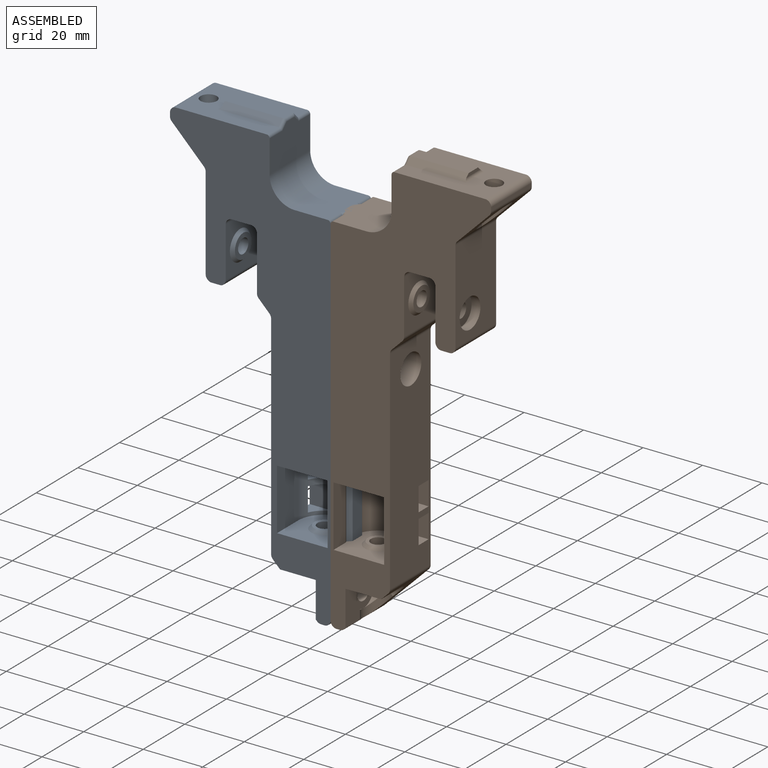
[diagram: assembled view]
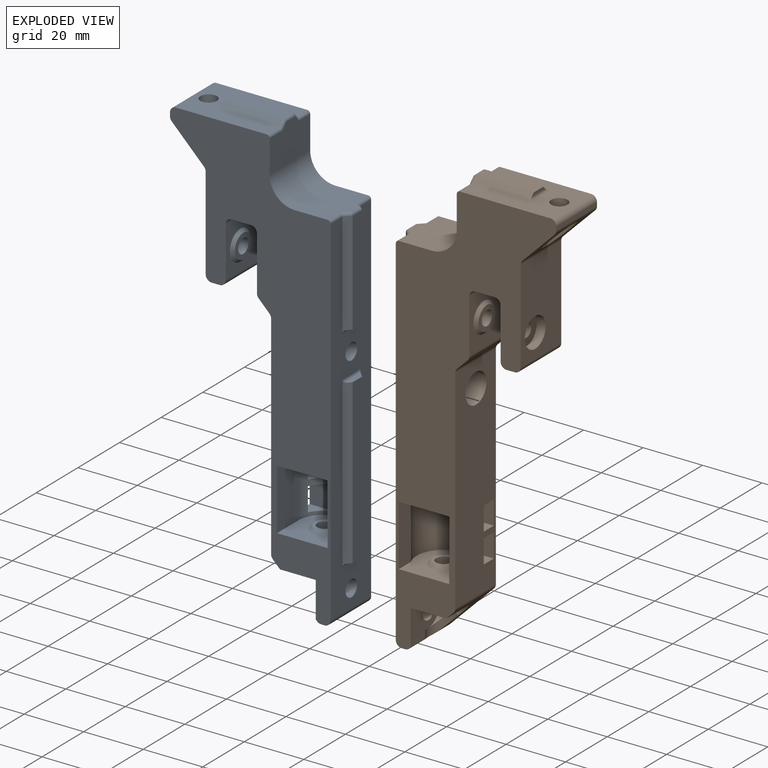
[diagram: exploded view]
GUIDED TOUR — FREECAD ASSEMBLY "back-idler-mounts"

This assembly has 2 components, labeled P0..P1 below (a component is one placed body or linked part; the same part can appear more than once), held together by 0 modeled joints plus 1 derived contact edge. A joint is a constraint between two components; its type names the relative motion it leaves free:
  CONTACT — a derived adjacency edge — the two components touch in the source model (clearance under 2% of the assembly's diagonal); it is measured from the geometry, not a modeled constraint.
Axis/direction vectors are unit vectors and 'through' points are millimeter coordinates, both in the assembly's world frame.

MATES
  1. CONTACT "contact_0_1": P0 <-> P1, contact direction (1.000, 0.000, 0.000) through (0.00, -10.00, -142.00) mm (derived from contact, not a modeled constraint)

ASSEMBLY ORDER
  1. P0 — the base component [order heuristic]
  2. P1 [order heuristic]
Order-tag legend:
  [order heuristic] — this assembly is geometrically interlocked (no collision-free removal order exists), so components are listed in mate-graph order; insertion feasibility is not verified.

Of the 2 components, 2 carry a construction recipe — the FreeCAD feature program (sketches with constraints, then the solid features that consume them) that regenerates the part from scratch, quoted from this document or from the linked companion document it references; the rest are supplied as boundary geometry only. The tour below walks the components in assembly order: each is shown spotlighted twice — in the assembled view, then in the exploded view, where a leader line traces a displaced component back to its assembled socket (components that stay in place when exploded have no leader line; saturated green if recipe-attached, orange if geometry-only; every other component desaturated gray) — followed by its recipe or geometry summary and the mates that hold it.
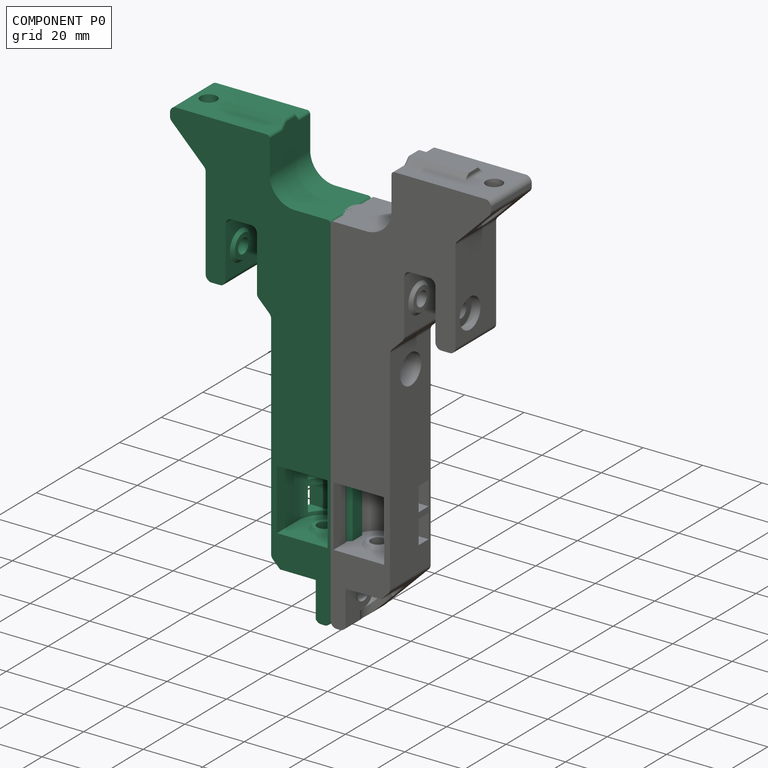
[diagram: component P0 — assembled]
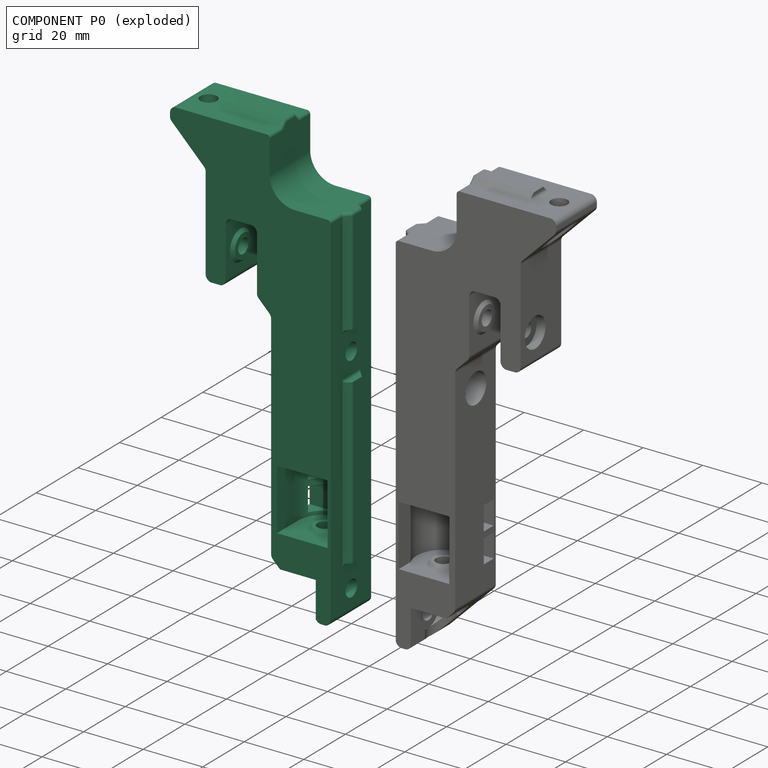
[diagram: component P0 — exploded]
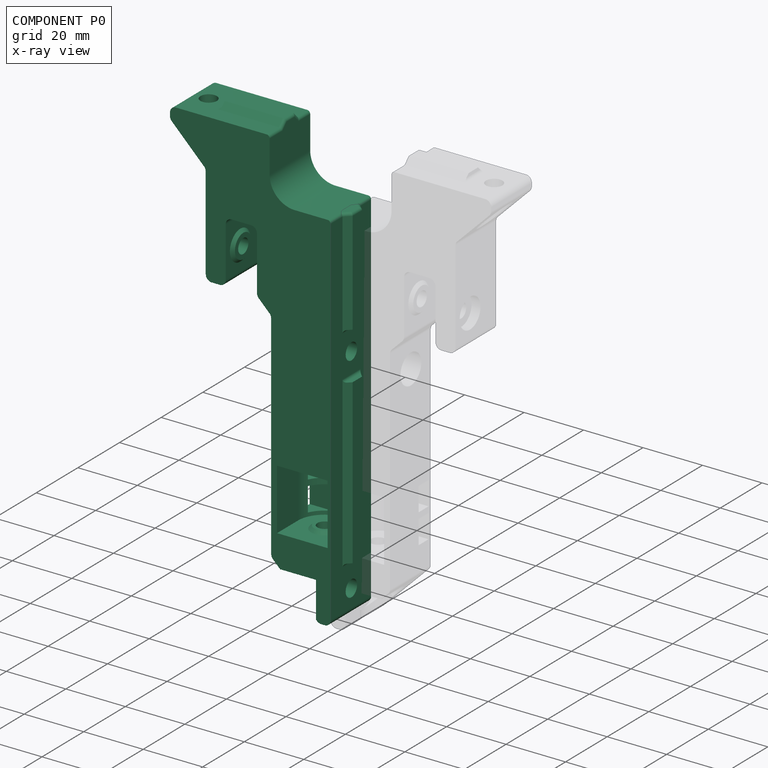
[diagram: component P0 — x-ray view]
COMPONENT P0 — recipe-attached ("main-right", modeled in this document).
Held by: resting contact with P1 (derived edge).
Construction recipe (the document's own serialized feature program — sketch geometry with constraints, then the solid features built on it; lengths are millimeters unless a unit is written):

FEATURE [Sketcher::SketchObject] Sketch307
  ArcFitTolerance = 0
  AttachmentSupport = -> [XZ_Plane295]
  FullyConstrained = true
  MakeInternals = false
  MapMode = 5
  Placement = pos=(0,0,0) rot=(1,0,0;1.5708rad)
  sketch-geometry (47):
    g0: LineSegment [constr] StartX=-20 StartY=0 StartZ=0 EndX=-20 EndY=-12 EndZ=0
    g1: LineSegment [constr] StartX=-12 StartY=-20 StartZ=0 EndX=0 EndY=-20 EndZ=0
    g2: LineSegment StartX=-20.5 StartY=0 StartZ=0 EndX=-20.5 EndY=-12 EndZ=0
    g3: LineSegment StartX=-12 StartY=-20.5 StartZ=0 EndX=0 EndY=-20.5 EndZ=0
    g4: LineSegment [constr] StartX=0 StartY=-20.5 StartZ=0 EndX=0 EndY=-20 EndZ=0
    g5: LineSegment StartX=-20.5 StartY=0 StartZ=0 EndX=-52 EndY=0 EndZ=0
    g6: LineSegment StartX=-54 StartY=-2 StartZ=0 EndX=-54 EndY=-3.17157 EndZ=0
    g7: LineSegment StartX=-53.4142 StartY=-4.58579 StartZ=0 EndX=-42.5858 EndY=-15.4142 EndZ=0
    g8: LineSegment StartX=-42 StartY=-16.8284 StartZ=0 EndX=-42 EndY=-48 EndZ=0
    g9: LineSegment StartX=-40 StartY=-50 StartZ=0 EndX=-37.25 EndY=-50 EndZ=0
    g10: LineSegment StartX=-35.25 StartY=-48 StartZ=0 EndX=-35.25 EndY=-31 EndZ=0
    g11: LineSegment StartX=-33.25 StartY=-29 StartZ=0 EndX=-26.75 EndY=-29 EndZ=0
    g12: LineSegment StartX=-24.75 StartY=-31 StartZ=0 EndX=-24.75 EndY=-49.1716 EndZ=0
    g13: LineSegment StartX=-24.1642 StartY=-50.5858 StartZ=0 EndX=-20.5858 EndY=-54.1642 EndZ=0
    g14: LineSegment StartX=-20 StartY=-55.5784 StartZ=0 EndX=-20 EndY=-127.172 EndZ=0
    g15: LineSegment StartX=-19.4142 StartY=-128.586 StartZ=0 EndX=-4.58579 EndY=-143.414 EndZ=0
    g16: LineSegment StartX=-3.17157 StartY=-144 StartZ=0 EndX=-2 EndY=-144 EndZ=0
    g17: LineSegment StartX=0 StartY=-142 StartZ=0 EndX=0 EndY=-20.5 EndZ=0
    g18: GeomPoint [constr] X=-30 Y=-50 Z=0
    g19: ArcOfCircle CenterX=-33.25 CenterY=-31 CenterZ=0 NormalX=0 NormalY=0 NormalZ=1 AngleXU=0 Radius=2 StartAngle=1.5708 EndAngle=3.14159
    g20: GeomPoint [constr] X=-35.25 Y=-29 Z=0
    g21: ArcOfCircle CenterX=-26.75 CenterY=-31 CenterZ=0 NormalX=0 NormalY=0 NormalZ=1 AngleXU=0 Radius=2 StartAngle=0 EndAngle=1.5708
    g22: GeomPoint [constr] X=-24.75 Y=-29 Z=0
    g23: ArcOfCircle CenterX=-12 CenterY=-12 CenterZ=0 NormalX=0 NormalY=0 NormalZ=1 AngleXU=0 Radius=8.5 StartAngle=3.14159 EndAngle=4.71239
    g24: ArcOfCircle [constr] CenterX=-12 CenterY=-12 CenterZ=0 NormalX=0 NormalY=0 NormalZ=1 AngleXU=0 Radius=8 StartAngle=3.14159 EndAngle=4.71239
    g25: GeomPoint [constr] X=-20.5 Y=0 Z=0
    g26: ArcOfCircle CenterX=-52 CenterY=-2 CenterZ=0 NormalX=0 NormalY=0 NormalZ=1 AngleXU=0 Radius=2 StartAngle=1.5708 EndAngle=3.14159
    g27: GeomPoint [constr] X=-54 Y=0 Z=0
    g28: ArcOfCircle CenterX=-52 CenterY=-3.17157 CenterZ=0 NormalX=0 NormalY=0 NormalZ=1 AngleXU=0 Radius=2 StartAngle=3.14159 EndAngle=3.92699
    g29: GeomPoint [constr] X=-54 Y=-4 Z=0
    g30: ArcOfCircle CenterX=-44 CenterY=-16.8284 CenterZ=0 NormalX=0 NormalY=0 NormalZ=1 AngleXU=0 Radius=2 StartAngle=7e-16 EndAngle=0.785398
    g31: GeomPoint [constr] X=-42 Y=-16 Z=0
    g32: ArcOfCircle CenterX=-40 CenterY=-48 CenterZ=0 NormalX=0 NormalY=0 NormalZ=1 AngleXU=0 Radius=2 StartAngle=3.14159 EndAngle=4.71239
    g33: GeomPoint [constr] X=-42 Y=-50 Z=0
    g34: ArcOfCircle CenterX=-37.25 CenterY=-48 CenterZ=0 NormalX=0 NormalY=0 NormalZ=1 AngleXU=0 Radius=2 StartAngle=4.71239 EndAngle=6.28319
    g35: GeomPoint [constr] X=-35.25 Y=-50 Z=0
    g36: ArcOfCircle CenterX=-22.75 CenterY=-49.1716 CenterZ=0 NormalX=0 NormalY=0 NormalZ=1 AngleXU=0 Radius=2 StartAngle=3.14159 EndAngle=3.92699
    g37: GeomPoint [constr] X=-24.75 Y=-50 Z=0
    g38: ArcOfCircle CenterX=-22 CenterY=-55.5784 CenterZ=0 NormalX=0 NormalY=0 NormalZ=1 AngleXU=0 Radius=2 StartAngle=0 EndAngle=0.785398
    g39: GeomPoint [constr] X=-20 Y=-54.75 Z=0
    g40: ArcOfCircle CenterX=-18 CenterY=-127.172 CenterZ=0 NormalX=0 NormalY=0 NormalZ=1 AngleXU=0 Radius=2 StartAngle=3.14159 EndAngle=3.92699
    g41: GeomPoint [constr] X=-20 Y=-128 Z=0
    g42: ArcOfCircle CenterX=-3.17157 CenterY=-142 CenterZ=0 NormalX=0 NormalY=0 NormalZ=1 AngleXU=0 Radius=2 StartAngle=3.92699 EndAngle=4.71239
    g43: GeomPoint [constr] X=-4 Y=-144 Z=0
    g44: ArcOfCircle CenterX=-2 CenterY=-142 CenterZ=0 NormalX=0 NormalY=0 NormalZ=1 AngleXU=0 Radius=2 StartAngle=4.71239 EndAngle=6.28319
    g45: GeomPoint [constr] X=0 Y=-144 Z=0
    g46: GeomPoint [constr] X=0 Y=-20.5 Z=0
  constraints (108):
    c: PointOnObject(g0,g-1)
    c: Vertical(g0)
    c: Horizontal(g1)
    c: Equal(g1,g0)
    c: PointOnObject(g1,g-2)
    c: DistanceY(g1) = -20
    c: PointOnObject(g25,g-1)
    c: Vertical(g2)
    c: PointOnObject(g46,g-2)
    c: Horizontal(g3)
    c: Coincident(g4,g46)
    c: Coincident(g4,g1)
    c: PointOnObject(g27,g-1)
    c: Vertical(g6)
    c: Vertical(g8)
    c: Horizontal(g9)
    c: Vertical(g10)
    c: Horizontal(g11)
    c: Vertical(g12)
    c: Vertical(g14)
    c: Horizontal(g16)
    c: Vertical(g17)
    c: DistanceX(g43,g45) = 4
    c: DistanceY(g29,g27) = 4
    c: Angle(g7) = -0.785398
    c: DistanceX(g29,g31) = 12
    c: Horizontal(g35,g37)
    c: DistanceY(g33) = -50
    c: Angle(g15) = -0.785398
    c: DistanceX(g41,g45) = 20
    c: DistanceY(g45) = -144
    c: Symmetric(g35,g37,g18)
    c: DistanceX(g18) = -30
    c: DistanceX(g20,g22) = 10.5
    c: DistanceY(g37,g22) = 21
    c: PointOnObject(g20,g10)
    c: PointOnObject(g20,g11)
    c: Tangent(g10,g19) = 1.5708
    c: Tangent(g11,g19) = 1.5708
    c: PointOnObject(g22,g11)
    c: PointOnObject(g22,g12)
    c: Tangent(g11,g21) = 1.5708
    c: Tangent(g12,g21) = 1.5708
    c: Equal(g21,g19)
    c: Radius(g19) = 2
    c: Angle(g13) = -0.785398
    c: DistanceX(g31) = -42
    c: Tangent(g23,g2) = -1.5708
    c: Tangent(g23,g3) = -1.5708
    c: Coincident(g24,g23)
    c: Tangent(g24,g1) = -1.5708
    c: Tangent(g0,g24) = -1.5708
    c: DistanceY(g0,g0) = 12
    c: DistanceX(g2,g0) = 0.5
    c: PointOnObject(g27,g6)
    c: PointOnObject(g27,g5)
    c: Tangent(g6,g26) = -1.5708
    c: Tangent(g5,g26) = -1.5708
    c: PointOnObject(g29,g6)
    c: PointOnObject(g29,g7)
    c: Tangent(g6,g28) = -1.5708
    c: Tangent(g7,g28) = -1.5708
    c: PointOnObject(g31,g7)
    c: PointOnObject(g31,g8)
    c: Tangent(g7,g30) = 1.5708
    c: Tangent(g8,g30) = 1.5708
    c: PointOnObject(g33,g8)
    c: PointOnObject(g33,g9)
    c: Tangent(g8,g32) = -1.5708
    c: Tangent(g9,g32) = -1.5708
    c: PointOnObject(g35,g9)
    c: PointOnObject(g35,g10)
    c: Tangent(g9,g34) = -1.5708
    c: Tangent(g10,g34) = -1.5708
    c: PointOnObject(g37,g12)
    c: PointOnObject(g37,g13)
    c: Tangent(g12,g36) = -1.5708
    c: Tangent(g13,g36) = -1.5708
    c: PointOnObject(g39,g13)
    c: PointOnObject(g39,g14)
    c: Tangent(g13,g38) = 1.5708
    c: Tangent(g14,g38) = 1.5708
    c: PointOnObject(g41,g14)
    c: PointOnObject(g41,g15)
    c: Tangent(g14,g40) = -1.5708
    c: Tangent(g15,g40) = -1.5708
    c: PointOnObject(g43,g15)
    c: PointOnObject(g43,g16)
    c: Tangent(g15,g42) = -1.5708
    c: Tangent(g16,g42) = -1.5708
    c: PointOnObject(g45,g16)
    c: PointOnObject(g45,g17)
    c: Tangent(g16,g44) = -1.5708
    c: Tangent(g17,g44) = -1.5708
    c: Equal(g26,g28)
    c: Equal(g28,g30)
    c: Equal(g32,g34)
    c: Equal(g34,g36)
    c: Equal(g36,g38)
    c: Equal(g32,g30)
    c: Equal(g44,g42)
    c: Equal(g42,g40)
    c: Equal(g40,g38)
    c: Coincident(g3,g17)
    c: Coincident(g3,g4)
    c: Coincident(g5,g2)
    c: Coincident(g5,g25)
    c: Radius(g26) = 2
FEATURE [PartDesign::Pad] Pad075
  Direction = (0,-1,2e-16)
  Length = 20
  Length2 = 10
  Midplane = true
  Placement = pos=(0,0,0) rot=(1,0,0;1.5708rad)
  Profile = -> Sketch307
  ReferenceAxis = -> Sketch307 [N_Axis]
  Suppressed = false
  Type = 0
FEATURE [Sketcher::SketchObject] Sketch308
  ArcFitTolerance = 0
  AttachmentSupport = -> [XY_Plane295]
  FullyConstrained = true
  MakeInternals = false
  MapMode = 5
  sketch-geometry (9):
    g0: LineSegment [constr] StartX=0 StartY=4.7 StartZ=0 EndX=2 EndY=2.7 EndZ=0
    g1: LineSegment [constr] StartX=2 StartY=2.7 StartZ=0 EndX=2 EndY=-2.7 EndZ=0
    g2: LineSegment [constr] StartX=2 StartY=-2.7 StartZ=0 EndX=0 EndY=-4.7 EndZ=0
    g3: LineSegment [constr] StartX=0 StartY=-4.7 StartZ=0 EndX=0 EndY=4.7 EndZ=0
    g4: LineSegment StartX=0 StartY=4.27574 StartZ=0 EndX=0 EndY=-4.27574 EndZ=0
    g5: LineSegment StartX=0 StartY=-4.27574 StartZ=0 EndX=2 EndY=-2.27574 EndZ=0
    g6: LineSegment StartX=2 StartY=-2.27574 StartZ=0 EndX=2 EndY=2.27574 EndZ=0
    g7: LineSegment StartX=2 StartY=2.27574 StartZ=0 EndX=0 EndY=4.27574 EndZ=0
    g8: LineSegment [constr] StartX=0.787868 StartY=3.48787 StartZ=0 EndX=1 EndY=3.7 EndZ=0
  constraints (23):
    c: PointOnObject(g0,g-2)
    c: Coincident(g0,g1)
    c: Coincident(g1,g2)
    c: Coincident(g2,g3)
    c: Coincident(g3,g0)
    c: Symmetric(g0,g2,g-1)
    c: Symmetric(g0,g1,g-1)
    c: Angle(g2) = -2.35619
    c: DistanceX(g2,g2) = 2
    c: DistanceY(g1,g1) = 5.4
    c: PointOnObject(g4,g3)
    c: Coincident(g4,g5)
    c: PointOnObject(g5,g1)
    c: Coincident(g5,g6)
    c: Coincident(g6,g7)
    c: Coincident(g7,g4)
    c: Symmetric(g6,g5,g-1)
    c: Symmetric(g4,g4,g-1)
    c: Parallel(g5,g2)
    c: PointOnObject(g8,g7)
    c: Symmetric(g0,g0,g8)
    c: Perpendicular(g0,g8)
    c: Distance(g8) = 0.3
FEATURE [PartDesign::Pad] Pad076
  BaseFeature = -> Pad075
  Direction = (0,0,1)
  Length = 127
  Length2 = -20.5
  Placement = pos=(0,0,0) rot=(1,0,0;1.5708rad)
  Profile = -> Sketch308
  ReferenceAxis = -> Sketch308 [N_Axis]
  Refine = true
  Reversed = true
  Suppressed = false
  Type = 4
FEATURE [Sketcher::SketchObject] Sketch309
  ArcFitTolerance = 0
  AttachmentSupport = -> [YZ_Plane295]
  FullyConstrained = true
  MakeInternals = false
  MapMode = 5
  Placement = pos=(0,0,0) rot=(0.57735,0.57735,0.57735;2.0944rad)
  sketch-geometry (9):
    g0: LineSegment [constr] StartX=-4.7 StartY=0 StartZ=0 EndX=-2.7 EndY=2 EndZ=0
    g1: LineSegment [constr] StartX=-2.7 StartY=2 StartZ=0 EndX=2.7 EndY=2 EndZ=0
    g2: LineSegment [constr] StartX=2.7 StartY=2 StartZ=0 EndX=4.7 EndY=0 EndZ=0
    g3: LineSegment [constr] StartX=4.7 StartY=0 StartZ=0 EndX=-4.7 EndY=0 EndZ=0
    g4: LineSegment StartX=-4.27574 StartY=0 StartZ=0 EndX=-2.27574 EndY=2 EndZ=0
    g5: LineSegment StartX=-2.27574 StartY=2 StartZ=0 EndX=2.27574 EndY=2 EndZ=0
    g6: LineSegment StartX=2.27574 StartY=2 StartZ=0 EndX=4.27574 EndY=0 EndZ=0
    g7: LineSegment StartX=4.27574 StartY=0 StartZ=0 EndX=-4.27574 EndY=0 EndZ=0
    g8: LineSegment [constr] StartX=3.7 StartY=1 StartZ=0 EndX=3.48787 EndY=0.787868 EndZ=0
  constraints (23):
    c: PointOnObject(g0,g-1)
    c: Coincident(g0,g1)
    c: Coincident(g1,g2)
    c: Coincident(g2,g3)
    c: Coincident(g3,g0)
    c: Symmetric(g0,g2,g-2)
    c: Symmetric(g1,g0,g-2)
    c: Angle(g2) = -0.785398
    c: DistanceX(g1,g1) = 5.4
    c: DistanceY(g2,g2) = 2
    c: PointOnObject(g4,g3)
    c: PointOnObject(g4,g1)
    c: Coincident(g4,g5)
    c: Coincident(g5,g6)
    c: Coincident(g6,g7)
    c: Coincident(g7,g4)
    c: Symmetric(g4,g6,g-2)
    c: Symmetric(g5,g4,g-2)
    c: Parallel(g6,g2)
    c: PointOnObject(g8,g6)
    c: Symmetric(g2,g1,g8)
    c: Perpendicular(g2,g8)
    c: Distance(g8) = 0.3
FEATURE [PartDesign::Pad] Pad077
  BaseFeature = -> Pad076
  Direction = (1,0,0)
  Length = 41
  Length2 = -20.5
  Placement = pos=(0,0,0) rot=(1,0,0;1.5708rad)
  Profile = -> Sketch309
  ReferenceAxis = -> Sketch309 [N_Axis]
  Refine = true
  Reversed = true
  Suppressed = false
  Type = 4
FEATURE [Sketcher::SketchObject] Sketch310
  ArcFitTolerance = 0
  AttachmentSupport = -> [XZ_Plane295]
  FullyConstrained = true
  MakeInternals = false
  MapMode = 5
  Placement = pos=(0,0,0) rot=(1,0,0;1.5708rad)
  sketch-geometry (4):
    g0: LineSegment StartX=0 StartY=-56 StartZ=0 EndX=2 EndY=-56 EndZ=0
    g1: LineSegment StartX=2 StartY=-56 StartZ=0 EndX=2 EndY=-72 EndZ=0
    g2: LineSegment StartX=2 StartY=-72 StartZ=0 EndX=0 EndY=-72 EndZ=0
    g3: LineSegment StartX=0 StartY=-72 StartZ=0 EndX=0 EndY=-56 EndZ=0
  constraints (12):
    c: PointOnObject(g0,g-2)
    c: Horizontal(g0)
    c: Coincident(g0,g1)
    c: Vertical(g1)
    c: Coincident(g1,g2)
    c: Horizontal(g2)
    c: Coincident(g2,g3)
    c: Coincident(g3,g0)
    c: Vertical(g3)
    c: DistanceX(g2,g2) = 2
    c: DistanceY(g1,g1) = 16
    c: DistanceY(g0) = -56
FEATURE [PartDesign::Pocket] Pocket194
  BaseFeature = -> Pad077
  Direction = (0,1,-2e-16)
  Length = 5
  Length2 = 5
  Midplane = true
  Placement = pos=(0,0,0) rot=(1,0,0;1.5708rad)
  Profile = -> Sketch310
  ReferenceAxis = -> Sketch310 [N_Axis]
  Refine = true
  Suppressed = false
  Type = 1
FEATURE [Sketcher::SketchObject] Sketch311
  ArcFitTolerance = 0
  AttachmentSupport = -> [YZ_Plane295]
  FullyConstrained = true
  MakeInternals = false
  MapMode = 5
  Placement = pos=(0,0,0) rot=(0.57735,0.57735,0.57735;2.0944rad)
  sketch-geometry (2):
    g0: Circle CenterX=0 CenterY=-64 CenterZ=0 NormalX=0 NormalY=0 NormalZ=1 AngleXU=0 Radius=2.75
    g1: Circle CenterX=0 CenterY=-136 CenterZ=0 NormalX=0 NormalY=0 NormalZ=1 AngleXU=0 Radius=2.75
  constraints (6):
    c: PointOnObject(g0,g-2)
    c: PointOnObject(g1,g-2)
    c: DistanceY(g0) = -64
    c: DistanceY(g1) = -136
    c: Equal(g1,g0)
    c: Diameter(g0) = 5.5
FEATURE [PartDesign::Pocket] Pocket195
  BaseFeature = -> Pocket194
  Direction = (-1,0,0)
  Length = 5
  Length2 = 5
  Midplane = true
  Placement = pos=(0,0,0) rot=(1,0,0;1.5708rad)
  Profile = -> Sketch311
  ReferenceAxis = -> Sketch311 [N_Axis]
  Suppressed = false
  Type = 1
FEATURE [Sketcher::SketchObject] Sketch312
  ArcFitTolerance = 0
  AttachmentSupport = -> [XY_Plane295]
  FullyConstrained = true
  MakeInternals = false
  MapMode = 5
  sketch-geometry (1):
    g0: Circle CenterX=-48 CenterY=0 CenterZ=0 NormalX=0 NormalY=0 NormalZ=1 AngleXU=0 Radius=2.75
  constraints (3):
    c: PointOnObject(g0,g-1)
    c: Diameter(g0) = 5.5
    c: DistanceX(g0) = -48
FEATURE [PartDesign::Pocket] Pocket196
  BaseFeature = -> Pocket195
  Direction = (0,0,-1)
  Length = 5
  Length2 = 5
  Midplane = true
  Placement = pos=(0,0,0) rot=(1,0,0;1.5708rad)
  Profile = -> Sketch312
  ReferenceAxis = -> Sketch312 [N_Axis]
  Suppressed = false
  Type = 1
FEATURE [Sketcher::SketchObject] Sketch313
  ArcFitTolerance = 0
  AttachmentOffset = pos=(0,0,-4) rot=(0,0,1;0rad)
  AttachmentSupport = -> [YZ_Plane295]
  FullyConstrained = true
  MakeInternals = false
  MapMode = 5
  Placement = pos=(-4,0,0) rot=(0.57735,0.57735,0.57735;2.0944rad)
  sketch-geometry (2):
    g0: Circle CenterX=0 CenterY=-136 CenterZ=0 NormalX=0 NormalY=0 NormalZ=1 AngleXU=0 Radius=5
    g1: Circle CenterX=0 CenterY=-64 CenterZ=0 NormalX=0 NormalY=0 NormalZ=1 AngleXU=0 Radius=5
  constraints (6):
    c: PointOnObject(g0,g-2)
    c: PointOnObject(g1,g-2)
    c: Equal(g1,g0)
    c: DistanceY(g0) = -136
    c: DistanceY(g1) = -64
    c: Diameter(g0) = 10
FEATURE [PartDesign::Pocket] Pocket197
  BaseFeature = -> Pocket196
  Direction = (-1,0,0)
  Length = 5
  Length2 = 5
  Placement = pos=(0,0,0) rot=(1,0,0;1.5708rad)
  Profile = -> Sketch313
  ReferenceAxis = -> Sketch313 [N_Axis]
  Suppressed = false
  Type = 1
FEATURE [Sketcher::SketchObject] Sketch314
  ArcFitTolerance = 0
  AttachmentOffset = pos=(0,0,-4) rot=(0,0,1;0rad)
  AttachmentSupport = -> [XY_Plane295]
  FullyConstrained = true
  MakeInternals = false
  MapMode = 5
  Placement = pos=(0,0,-4) rot=(0,0,1;0rad)
  sketch-geometry (1):
    g0: Circle CenterX=-48 CenterY=0 CenterZ=0 NormalX=0 NormalY=0 NormalZ=1 AngleXU=0 Radius=5
  constraints (3):
    c: PointOnObject(g0,g-1)
    c: Diameter(g0) = 10
    c: DistanceX(g0) = -48
FEATURE [PartDesign::Pocket] Pocket198
  BaseFeature = -> Pocket197
  Direction = (0,0,-1)
  Length = 5
  Length2 = 5
  Placement = pos=(0,0,0) rot=(1,0,0;1.5708rad)
  Profile = -> Sketch314
  ReferenceAxis = -> Sketch314 [N_Axis]
  Suppressed = false
  Type = 1
FEATURE [Sketcher::SketchObject] Sketch327
  ArcFitTolerance = 0
  AttachmentOffset = pos=(0,0,3) rot=(0,0,1;0rad)
  AttachmentSupport = -> [XZ_Plane295]
  FullyConstrained = true
  MakeInternals = false
  MapMode = 5
  Placement = pos=(0,-3,7e-16) rot=(1,0,0;1.5708rad)
  sketch-geometry (10):
    g0: GeomPoint [constr] X=-24.75 Y=-40 Z=0
    g1: LineSegment StartX=-24.75 StartY=-40 StartZ=0 EndX=-24.75 EndY=-35 EndZ=0
    g2: LineSegment StartX=-24.75 StartY=-35 StartZ=0 EndX=-25.75 EndY=-36 EndZ=0
    g3: LineSegment StartX=-25.75 StartY=-36 StartZ=0 EndX=-25.75 EndY=-40 EndZ=0
    g4: LineSegment StartX=-25.75 StartY=-40 StartZ=0 EndX=-24.75 EndY=-40 EndZ=0
    g5: GeomPoint [constr] X=-30 Y=-40 Z=0
    g6: LineSegment StartX=-34.25 StartY=-40 StartZ=0 EndX=-34.25 EndY=-36 EndZ=0
    g7: LineSegment StartX=-34.25 StartY=-36 StartZ=0 EndX=-35.25 EndY=-35 EndZ=0
    g8: LineSegment StartX=-35.25 StartY=-35 StartZ=0 EndX=-35.25 EndY=-40 EndZ=0
    g9: LineSegment StartX=-35.25 StartY=-40 StartZ=0 EndX=-34.25 EndY=-40 EndZ=0
  constraints (26):
    c: Coincident(g1,g0)
    c: Vertical(g1)
    c: Coincident(g1,g2)
    c: Coincident(g2,g3)
    c: Vertical(g3)
    c: Coincident(g3,g4)
    c: Coincident(g4,g1)
    c: Horizontal(g4)
    c: DistanceX(g4,g4) = 1
    c: DistanceY(g3,g3) = 4
    c: Angle(g2) = -2.35619
    c: DistanceY(g5) = -40
    c: DistanceX(g5) = -30
    c: Vertical(g6)
    c: Coincident(g6,g7)
    c: Coincident(g7,g8)
    c: Vertical(g8)
    c: Coincident(g8,g9)
    c: Coincident(g9,g6)
    c: Horizontal(g9)
    c: Symmetric(g6,g3,g5)
    c: Horizontal(g3,g5)
    c: Equal(g9,g4)
    c: Perpendicular(g2,g7)
    c: DistanceX(g6,g3) = 8.5
    c: Horizontal(g6,g2)
FEATURE [PartDesign::Revolution] Revolution021
  Angle = 360
  Angle2 = 60
  Axis = (1,0,0)
  Base = (-25.75,-3,-40)
  BaseFeature = -> Pocket198
  Placement = pos=(0,0,0) rot=(1,0,0;1.5708rad)
  Profile = -> Sketch327
  ReferenceAxis = -> Sketch327 [Edge4]
  Suppressed = false
  Type = 0
FEATURE [Sketcher::SketchObject] Sketch328
  ArcFitTolerance = 0
  AttachmentOffset = pos=(0,0,3) rot=(0,0,1;0rad)
  AttachmentSupport = -> [XZ_Plane295]
  FullyConstrained = true
  MakeInternals = false
  MapMode = 5
  Placement = pos=(0,-3,7e-16) rot=(1,0,0;1.5708rad)
  sketch-geometry (7):
    g0: GeomPoint [constr] X=-42 Y=-40 Z=0
    g1: LineSegment StartX=-42 StartY=-40 StartZ=0 EndX=-17 EndY=-40 EndZ=0
    g2: LineSegment StartX=-17 StartY=-40 StartZ=0 EndX=-17 EndY=-37.55 EndZ=0
    g3: LineSegment StartX=-17 StartY=-37.55 StartZ=0 EndX=-39 EndY=-37.55 EndZ=0
    g4: LineSegment StartX=-39 StartY=-37.55 StartZ=0 EndX=-39 EndY=-35 EndZ=0
    g5: LineSegment StartX=-39 StartY=-35 StartZ=0 EndX=-42 EndY=-35 EndZ=0
    g6: LineSegment StartX=-42 StartY=-35 StartZ=0 EndX=-42 EndY=-40 EndZ=0
  constraints (19):
    c: DistanceX(g0) = -42
    c: DistanceY(g0) = -40
    c: Coincident(g1,g0)
    c: Horizontal(g1)
    c: Coincident(g1,g2)
    c: Vertical(g2)
    c: Coincident(g2,g3)
    c: Horizontal(g3)
    c: Coincident(g3,g4)
    c: Vertical(g4)
    c: Coincident(g4,g5)
    c: Horizontal(g5)
    c: Coincident(g5,g6)
    c: Coincident(g6,g1)
    c: Vertical(g6)
    c: DistanceX(g3,g3) = 22
    c: DistanceY(g2,g2) = 2.45
    c: DistanceY(g6,g6) = 5
    c: DistanceX(g5,g5) = 3
FEATURE [PartDesign::Groove] Groove013
  Angle = 360
  Angle2 = 60
  Axis = (1,0,0)
  Base = (-42,-3,-40)
  BaseFeature = -> Revolution021
  Placement = pos=(0,0,0) rot=(1,0,0;1.5708rad)
  Profile = -> Sketch328
  ReferenceAxis = -> Sketch328 [Edge1]
  Reversed = true
  Suppressed = false
  Type = 0
FEATURE [Sketcher::SketchObject] Sketch329
  ArcFitTolerance = 0
  AttachmentOffset = pos=(0,0,-110) rot=(0,0,1;0rad)
  AttachmentSupport = -> [XY_Plane295]
  FullyConstrained = true
  MakeInternals = false
  MapMode = 5
  Placement = pos=(0,0,-110) rot=(0,0,1;0rad)
  sketch-geometry (6):
    g0: GeomPoint [constr] X=-9 Y=0 Z=0
    g1: Circle [constr] CenterX=-9 CenterY=0 CenterZ=0 NormalX=0 NormalY=0 NormalZ=1 AngleXU=0 Radius=8
    g2: LineSegment StartX=-18 StartY=3.3e-15 StartZ=0 EndX=-18 EndY=-10 EndZ=0
    g3: LineSegment StartX=-18 StartY=-10 StartZ=0 EndX=-1 EndY=-10 EndZ=0
    g4: ArcOfCircle CenterX=-9 CenterY=0 CenterZ=0 NormalX=0 NormalY=0 NormalZ=1 AngleXU=0 Radius=9 StartAngle=5.8073 EndAngle=9.42478
    g5: LineSegment StartX=-1 StartY=-4.12311 StartZ=0 EndX=-1 EndY=-10 EndZ=0
  constraints (16):
    c: PointOnObject(g0,g-1)
    c: DistanceX(g0) = -9
    c: Coincident(g1,g0)
    c: Diameter(g1) = 16
    c: PointOnObject(g2,g-1)
    c: Vertical(g2)
    c: Coincident(g3,g2)
    c: Horizontal(g3)
    c: DistanceY(g3,g-1) = 10
    c: Coincident(g4,g0)
    c: Coincident(g4,g2)
    c: Coincident(g5,g4)
    c: Coincident(g5,g3)
    c: Vertical(g5)
    c: DistanceX(g3) = -1
    c: PointOnObject(g-1,g4)
FEATURE [PartDesign::Pocket] Pocket211
  BaseFeature = -> Groove013
  Direction = (0,0,-1)
  Length = 20.5
  Length2 = 5
  Midplane = true
  Placement = pos=(0,0,0) rot=(1,0,0;1.5708rad)
  Profile = -> Sketch329
  ReferenceAxis = -> Sketch329 [N_Axis]
  Suppressed = false
  Type = 0
FEATURE [Sketcher::SketchObject] Sketch330
  ArcFitTolerance = 0
  AttachmentSupport = -> [XZ_Plane295]
  FullyConstrained = true
  MakeInternals = false
  MapMode = 5
  Placement = pos=(0,0,0) rot=(1,0,0;1.5708rad)
  sketch-geometry (10):
    g0: GeomPoint [constr] X=-9 Y=-110 Z=0
    g1: GeomPoint [constr] X=-9 Y=-99.75 Z=0
    g2: LineSegment StartX=-9 StartY=-99.75 StartZ=0 EndX=-9 EndY=-100.75 EndZ=0
    g3: LineSegment StartX=-9 StartY=-100.75 StartZ=0 EndX=-5.5 EndY=-100.75 EndZ=0
    g4: LineSegment StartX=-5.5 StartY=-100.75 StartZ=0 EndX=-4.5 EndY=-99.75 EndZ=0
    g5: LineSegment StartX=-4.5 StartY=-99.75 StartZ=0 EndX=-9 EndY=-99.75 EndZ=0
    g6: LineSegment StartX=-9 StartY=-120.25 StartZ=0 EndX=-9 EndY=-119.25 EndZ=0
    g7: LineSegment StartX=-9 StartY=-119.25 StartZ=0 EndX=-5.5 EndY=-119.25 EndZ=0
    g8: LineSegment StartX=-5.5 StartY=-119.25 StartZ=0 EndX=-4.5 EndY=-120.25 EndZ=0
    g9: LineSegment StartX=-4.5 StartY=-120.25 StartZ=0 EndX=-9 EndY=-120.25 EndZ=0
  constraints (25):
    c: DistanceY(g0) = -110
    c: DistanceX(g0) = -9
    c: Vertical(g1,g0)
    c: DistanceY(g0,g1) = 10.25
    c: Coincident(g2,g1)
    c: Vertical(g2)
    c: Coincident(g2,g3)
    c: Horizontal(g3)
    c: Coincident(g3,g4)
    c: Coincident(g4,g5)
    c: Coincident(g5,g2)
    c: Horizontal(g5)
    c: DistanceX(g3,g3) = 3.5
    c: Angle(g4) = 0.785398
    c: DistanceY(g2,g2) = 1
    c: Coincident(g6,g7)
    c: Horizontal(g7)
    c: Coincident(g7,g8)
    c: Coincident(g8,g9)
    c: Coincident(g9,g6)
    c: Horizontal(g9)
    c: Symmetric(g6,g2,g0)
    c: Perpendicular(g4,g8)
    c: Vertical(g7,g3)
    c: Symmetric(g6,g2,g0)
FEATURE [PartDesign::Revolution] Revolution022
  Angle = 360
  Angle2 = 60
  Axis = (0,-2e-16,-1)
  Base = (-9,-2.21e-14,-99.75)
  BaseFeature = -> Pocket211
  Placement = pos=(0,0,0) rot=(1,0,0;1.5708rad)
  Profile = -> Sketch330
  ReferenceAxis = -> Sketch330 [Edge1]
  Suppressed = false
  Type = 0
FEATURE [Sketcher::SketchObject] Sketch331
  ArcFitTolerance = 0
  AttachmentOffset = pos=(0,0,-9) rot=(0,0,1;0rad)
  AttachmentSupport = -> [YZ_Plane295]
  FullyConstrained = true
  MakeInternals = false
  MapMode = 5
  Placement = pos=(-9,0,0) rot=(0.57735,0.57735,0.57735;2.0944rad)
  sketch-geometry (11):
    g0: LineSegment StartX=3.7 StartY=-101 StartZ=0 EndX=8.5 EndY=-101 EndZ=0
    g1: LineSegment StartX=8.5 StartY=-101 StartZ=0 EndX=8.5 EndY=-109 EndZ=0
    g2: LineSegment StartX=8.5 StartY=-109 StartZ=0 EndX=3.7 EndY=-109 EndZ=0
    g3: LineSegment StartX=3.7 StartY=-109 StartZ=0 EndX=3.7 EndY=-101 EndZ=0
    g4: LineSegment StartX=3.7 StartY=-111 StartZ=0 EndX=8.5 EndY=-111 EndZ=0
    g5: LineSegment StartX=8.5 StartY=-111 StartZ=0 EndX=8.5 EndY=-119 EndZ=0
    g6: LineSegment StartX=8.5 StartY=-119 StartZ=0 EndX=3.7 EndY=-119 EndZ=0
    g7: LineSegment StartX=3.7 StartY=-119 StartZ=0 EndX=3.7 EndY=-111 EndZ=0
    g8: GeomPoint [constr] X=6.1 Y=-105 Z=0
    g9: GeomPoint [constr] X=6.1 Y=-115 Z=0
    g10: GeomPoint [constr] X=6.1 Y=-110 Z=0
  constraints (27):
    c: Coincident(g0,g1)
    c: Coincident(g1,g2)
    c: Coincident(g2,g3)
    c: Coincident(g3,g0)
    c: Horizontal(g0)
    c: Horizontal(g2)
    c: Vertical(g1)
    c: Vertical(g3)
    c: Coincident(g4,g5)
    c: Coincident(g5,g6)
    c: Coincident(g6,g7)
    c: Coincident(g7,g4)
    c: Horizontal(g4)
    c: Horizontal(g6)
    c: Vertical(g5)
    c: Vertical(g7)
    c: Vertical(g4,g2)
    c: Vertical(g1,g4)
    c: Symmetric(g9,g8,g10)
    c: Symmetric(g0,g2,g8)
    c: Symmetric(g4,g6,g9)
    c: Equal(g5,g1)
    c: DistanceY(g9,g8) = 10
    c: DistanceY(g10) = -110
    c: DistanceY(g1,g1) = 8
    c: DistanceX(g0) = 8.5
    c: DistanceX(g10) = 6.1
FEATURE [PartDesign::Pocket] Pocket212
  BaseFeature = -> Revolution022
  Direction = (-1,0,0)
  Length = 5
  Length2 = 5
  Placement = pos=(0,0,0) rot=(1,0,0;1.5708rad)
  Profile = -> Sketch331
  ReferenceAxis = -> Sketch331 [N_Axis]
  Suppressed = false
  Type = 1
FEATURE [Sketcher::SketchObject] Sketch332
  ArcFitTolerance = 0
  AttachmentSupport = -> [XZ_Plane295]
  FullyConstrained = true
  MakeInternals = false
  MapMode = 5
  Placement = pos=(0,0,0) rot=(1,0,0;1.5708rad)
  sketch-geometry (7):
    g0: LineSegment StartX=-9 StartY=-144 StartZ=0 EndX=-9 EndY=-96 EndZ=0
    g1: LineSegment StartX=-9 StartY=-96 StartZ=0 EndX=-6.55 EndY=-96 EndZ=0
    g2: LineSegment StartX=-6.55 StartY=-96 StartZ=0 EndX=-6.55 EndY=-123 EndZ=0
    g3: LineSegment StartX=-6.55 StartY=-123 StartZ=0 EndX=-4 EndY=-123 EndZ=0
    g4: LineSegment StartX=-4 StartY=-123 StartZ=0 EndX=-4 EndY=-144 EndZ=0
    g5: LineSegment StartX=-4 StartY=-144 StartZ=0 EndX=-9 EndY=-144 EndZ=0
    g6: GeomPoint [constr] X=-9 Y=-110 Z=0
  constraints (20):
    c: Vertical(g0)
    c: Coincident(g0,g1)
    c: Horizontal(g1)
    c: Coincident(g1,g2)
    c: Vertical(g2)
    c: Coincident(g2,g3)
    c: Horizontal(g3)
    c: Coincident(g3,g4)
    c: Vertical(g4)
    c: Coincident(g4,g5)
    c: Coincident(g5,g0)
    c: Horizontal(g5)
    c: DistanceX(g0) = -9
    c: DistanceX(g1,g1) = 2.45
    c: DistanceY(g2,g2) = 27
    c: DistanceX(g5,g5) = 5
    c: DistanceY(g4) = -144
    c: PointOnObject(g6,g0)
    c: DistanceY(g6) = -110
    c: DistanceY(g2,g6) = 13
FEATURE [PartDesign::Groove] Groove014
  Angle = 360
  Angle2 = 60
  Axis = (0,2e-16,1)
  Base = (-9,-3.2e-14,-144)
  BaseFeature = -> Pocket212
  Placement = pos=(0,0,0) rot=(1,0,0;1.5708rad)
  Profile = -> Sketch332
  ReferenceAxis = -> Sketch332 [Edge1]
  Reversed = true
  Suppressed = false
  Type = 0
FEATURE [Sketcher::SketchObject] Sketch333
  ArcFitTolerance = 0
  AttachmentSupport = -> [XZ_Plane295]
  FullyConstrained = true
  MakeInternals = false
  MapMode = 5
  Placement = pos=(0,0,0) rot=(1,0,0;1.5708rad)
  sketch-geometry (4):
    g0: LineSegment StartX=-20 StartY=-131 StartZ=0 EndX=-5 EndY=-131 EndZ=0
    g1: LineSegment StartX=-5 StartY=-131 StartZ=0 EndX=-5 EndY=-144 EndZ=0
    g2: LineSegment StartX=-5 StartY=-144 StartZ=0 EndX=-20 EndY=-144 EndZ=0
    g3: LineSegment StartX=-20 StartY=-144 StartZ=0 EndX=-20 EndY=-131 EndZ=0
  constraints (12):
    c: Coincident(g0,g1)
    c: Coincident(g1,g2)
    c: Coincident(g2,g3)
    c: Coincident(g3,g0)
    c: Horizontal(g0)
    c: Horizontal(g2)
    c: Vertical(g1)
    c: Vertical(g3)
    c: DistanceY(g1,g1) = 13
    c: DistanceX(g1) = -5
    c: DistanceY(g1) = -144
    c: DistanceX(g2) = -20
FEATURE [PartDesign::Pocket] Pocket213
  BaseFeature = -> Groove014
  Direction = (0,1,-2e-16)
  Length = 0
  Length2 = 5
  Placement = pos=(0,0,0) rot=(1,0,0;1.5708rad)
  Profile = -> Sketch333
  ReferenceAxis = -> Sketch333 [N_Axis]
  Refine = true
  Reversed = true
  Suppressed = false
  Type = 1
FEATURE [PartDesign::Fillet] Fillet009
  Base = -> Pocket213 [Edge2,Edge37,Edge38,Edge39,Edge7,Edge88,Edge87,Edge86,Edge85,Edge84,Edge6,Edge91,Edge96,Edge95]
  BaseFeature = -> Pocket213
  Placement = pos=(0,0,0) rot=(1,0,0;1.5708rad)
  Radius = 1
  SupportTransform = false
  Suppressed = false
  UseAllEdges = false
FEATURE [PartDesign::Chamfer] Chamfer013
  Angle = 45
  Base = -> Fillet009 [Edge14]
  BaseFeature = -> Fillet009
  ChamferType = 0
  FlipDirection = false
  Placement = pos=(0,0,0) rot=(1,0,0;1.5708rad)
  Size = 0.5
  Size2 = 1
  SupportTransform = false
  Suppressed = false
  UseAllEdges = false
FEATURE [PartDesign::Body] Body155  label="z-motion-back-idler-mount-right"
  AllowCompound = false
  Group = -> [Sketch307,Pad075,Sketch308,Pad076,Sketch309,Pad077,Sketch310,Pocket194,Sketch311,Pocket195,Sketch312,Pocket196,Sketch313,Pocket197,Sketch314,Pocket198,Sketch327,Revolution021,Sketch328,Groove013,Sketch329,Pocket211,Sketch330,Revolution022,Sketch331,Pocket212,Sketch332,Groove014,Sketch333,Pocket213,Fillet009,Chamfer013]
  Origin = -> Origin296
  Tip = -> Chamfer013
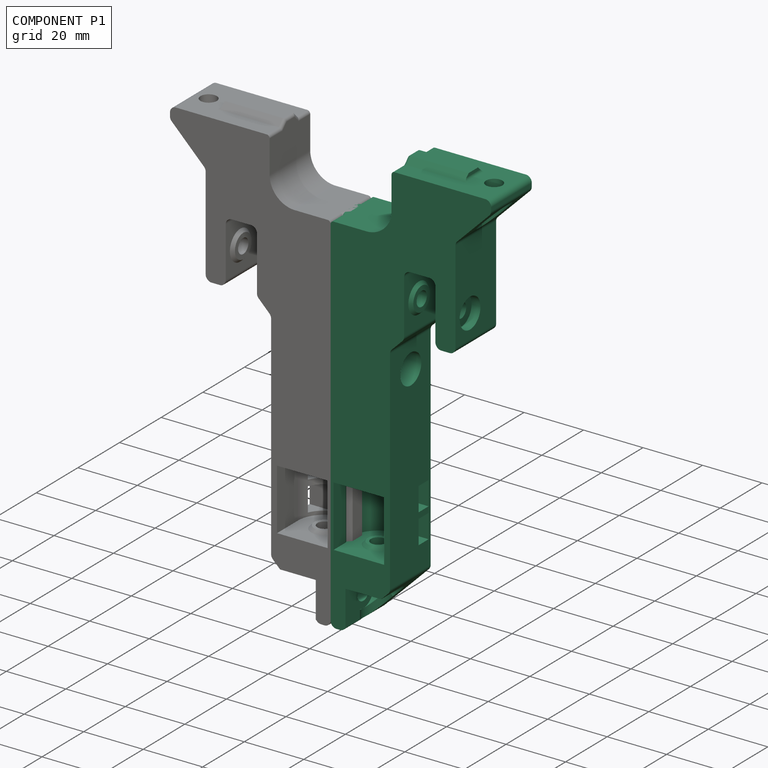
[diagram: component P1 — assembled]
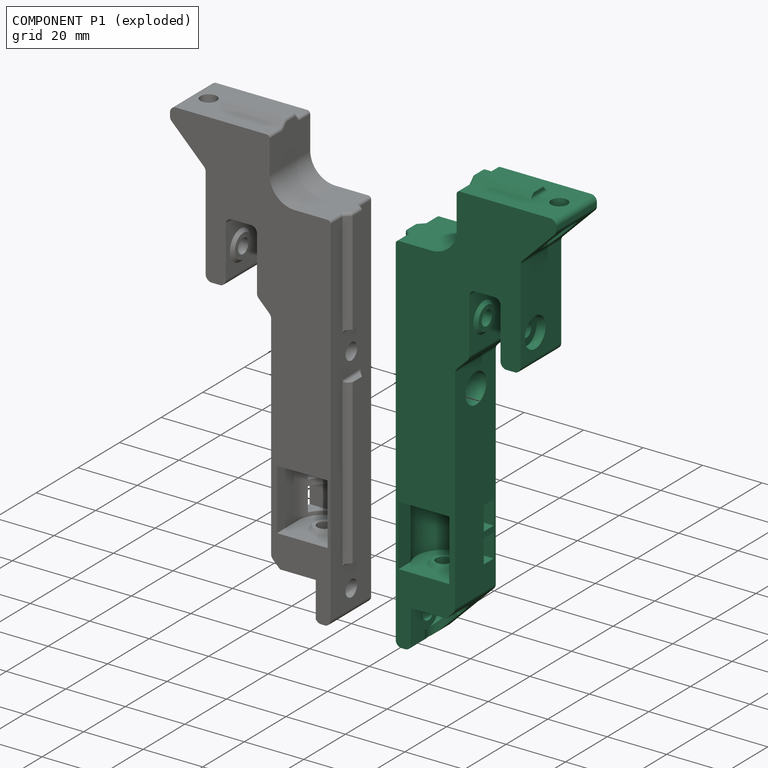
[diagram: component P1 — exploded]
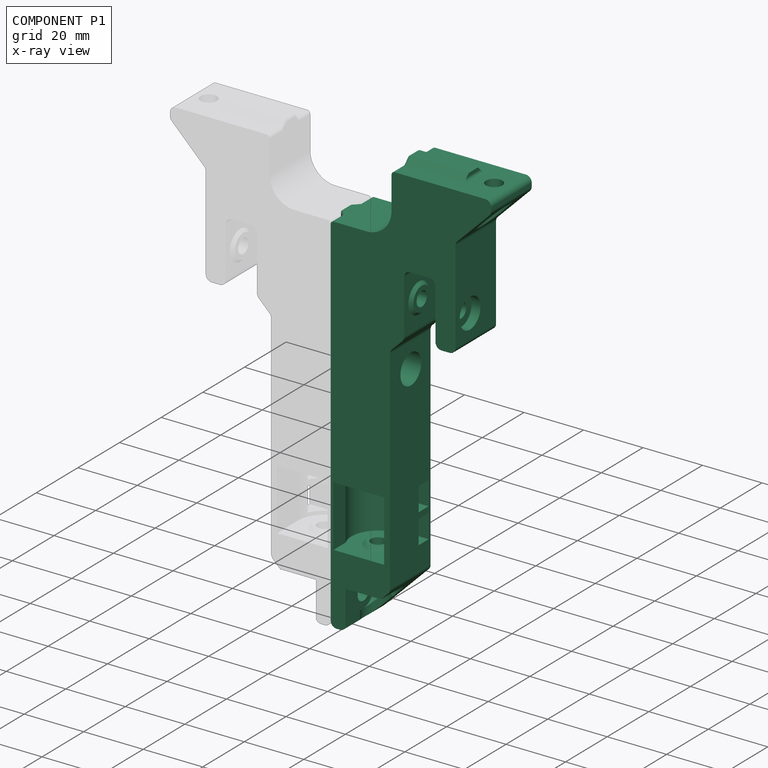
[diagram: component P1 — x-ray view]
COMPONENT P1 — recipe-attached ("main-left", modeled in this document).
Held by: resting contact with P0 (derived edge).
Construction recipe (the document's own serialized feature program — sketch geometry with constraints, then the solid features built on it; lengths are millimeters unless a unit is written):

FEATURE [PartDesign::FeatureBase] Clone
  BaseFeature = -> Body155
  Suppressed = false
FEATURE [PartDesign::Body] Body  label="z-motion-idler-mount-left-drv"
  AllowCompound = false
  Group = -> [Clone]
  Origin = -> Origin
  Tip = -> Clone
PROVENANCE & LICENSES
Assembly and component geometry: a FreeCAD (.FCStd) document from a public repository crawl; components, placements and joints were extracted with FreeCAD and each solid tessellated.
Construction recipes: the document's own serialized feature recipes (and, for linked parts, the recipes of companion documents from the same project).
License: as declared in the source repository (recorded in the dataset sidecar).
Joints: native FreeCAD joints and A2plus constraints are mapped to standard mate types; edges marked 'derived from contact' connect touching components and are measured from the geometry, not modeled.
Verification: 2 of this assembly's 2 components carry a construction recipe (2 from this document itself); the rest are geometry-only. Every component's tessellation passed the extraction mesh gates (mesh-volume checksum against the B-rep where available, bounding-box inflation <= 2%).
Renders: orthographic iso camera (az 35 / el 25); the floor grid conveys scale (grid pitch printed in each image; no ruler). In the exploded view each component is displaced by its stored offset vector: the offsets alone carry the explosion direction (mate normal/axis signs are not orientation cues and do not encode it), and separation distances are assigned per mate-chain, not proportionally to assembly-order depth.
